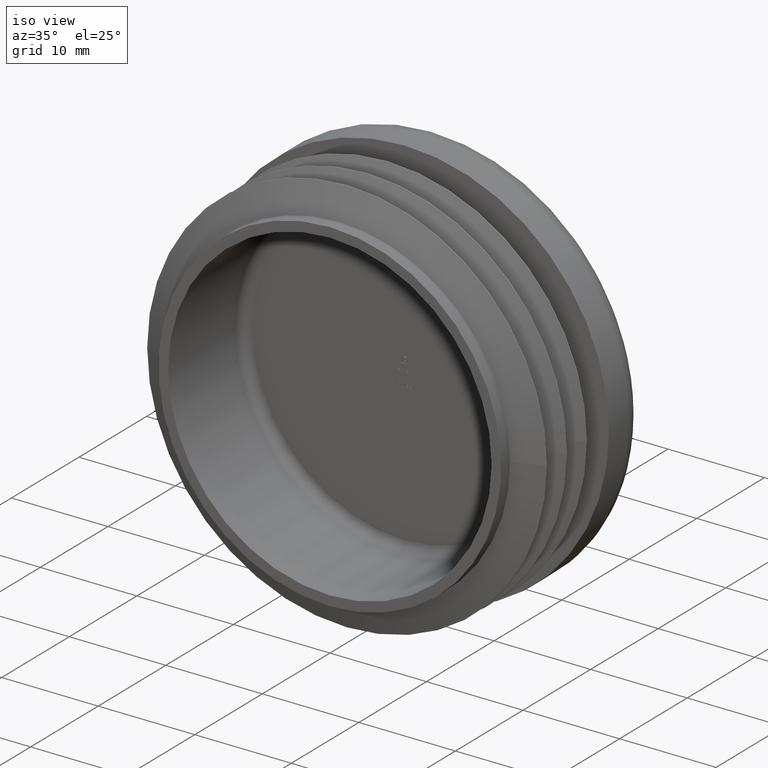
[diagram: clean part render]
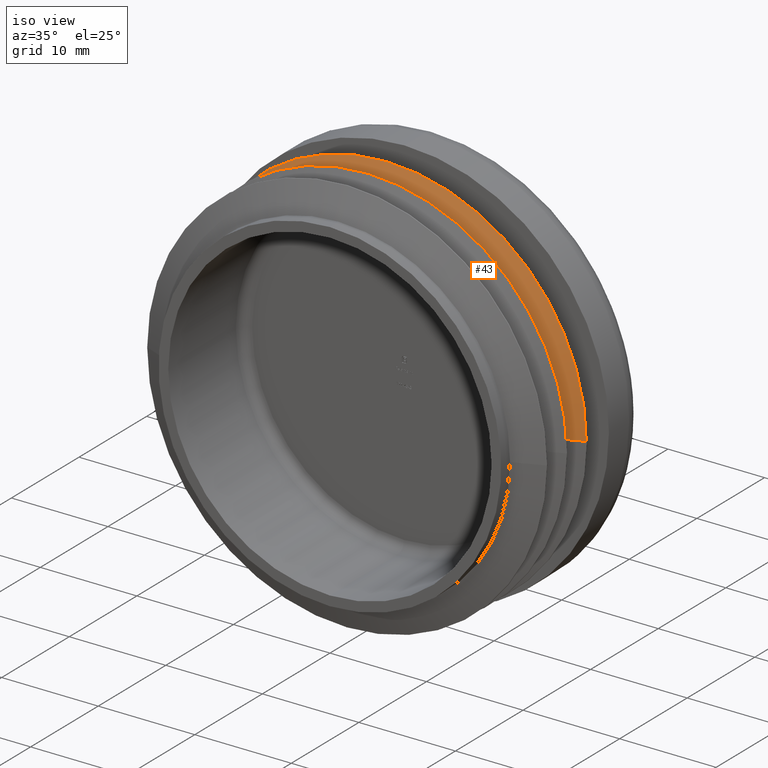
[diagram: same view with one face highlighted and labeled with its STEP entity id]
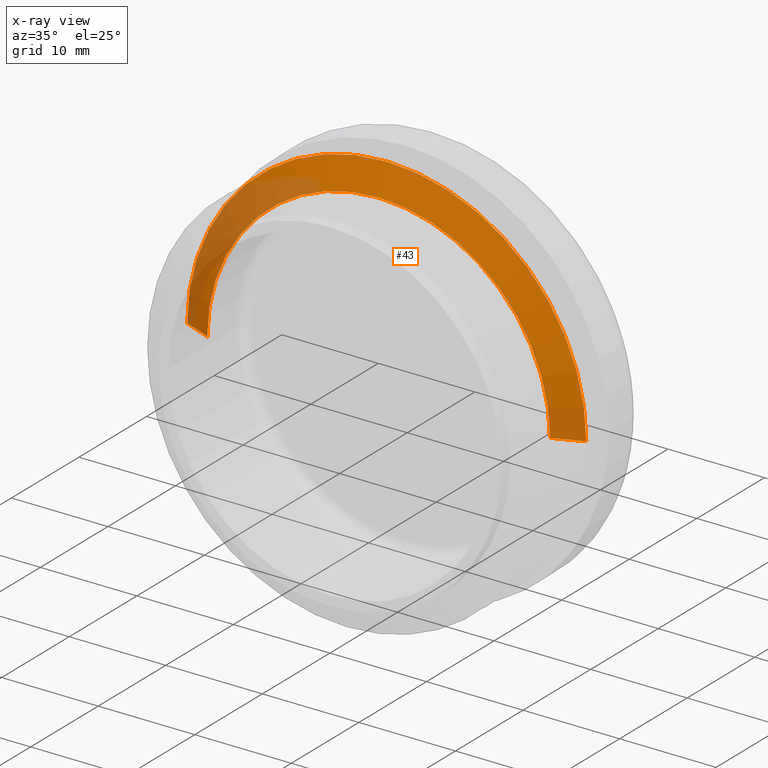
[diagram: x-ray of the same camera — body ghosted, the highlighted face saturated]
A machine part, iso view. The second image highlights one B-rep face of the part: STEP entity #43.
The next image is the same camera in x-ray: the body ghosted, the highlighted face saturated — about 22% of this face is hidden behind the body in this view.
In plain terms, the highlighted conical surface has half-angle 67.59 deg.
Its self-contained STEP definition (entity closure, byte-faithful):
#43 = ADVANCED_FACE ( 'NONE', ( #10192 ), #1349, .T. ) ;
#117 = VERTEX_POINT ( 'NONE', #3184 ) ;
#480 = DIRECTION ( 'NONE',  ( -1.000000000000000000, -1.045720630588836077E-14, 0.000000000000000000 ) ) ;
#1106 = ORIENTED_EDGE ( 'NONE', *, *, #1691, .T. ) ;
#1240 = CARTESIAN_POINT ( 'NONE',  ( 2.173748068484609071E-15, 7.200000000000192024, 17.74999999999999645 ) ) ;
#1349 = CONICAL_SURFACE ( 'NONE', #3201, 17.75000000000007105, 1.179659376938436699 ) ;
#1691 = EDGE_CURVE ( 'NONE', #2196, #2967, #10489, .T. ) ;
#1957 = VERTEX_POINT ( 'NONE', #8608 ) ;
#2052 = DIRECTION ( 'NONE',  ( 1.000000000000000000, 1.049106314699618723E-14, 0.000000000000000000 ) ) ;
#2196 = VERTEX_POINT ( 'NONE', #3012 ) ;
#2201 = EDGE_CURVE ( 'NONE', #2196, #9120, #4946, .T. ) ;
#2301 = DIRECTION ( 'NONE',  ( -1.047444401652940164E-14, 1.000000000000000000, 0.000000000000000000 ) ) ;
#2625 = CARTESIAN_POINT ( 'NONE',  ( -20.66906198721983756, 8.403776189650390194, 0.000000000000000000 ) ) ;
#2705 = AXIS2_PLACEMENT_3D ( 'NONE', #10009, #2301, #480 ) ;
#2791 = EDGE_LOOP ( 'NONE', ( #7774, #12340, #7047, #9863, #1106 ) ) ;
#2967 = VERTEX_POINT ( 'NONE', #1240 ) ;
#3012 = CARTESIAN_POINT ( 'NONE',  ( -17.75000000000007105, 7.200000000000006395, 0.000000000000000000 ) ) ;
#3076 = CIRCLE ( 'NONE', #11592, 20.66906198721974874 ) ;
#3184 = CARTESIAN_POINT ( 'NONE',  ( 20.66906198721965993, 8.403776189650823625, 2.531230060402689730E-15 ) ) ;
#3201 = AXIS2_PLACEMENT_3D ( 'NONE', #3929, #4778, #4822 ) ;
#3929 = CARTESIAN_POINT ( 'NONE',  ( -7.541599691901402812E-14, 7.200000000000223999, 0.000000000000000000 ) ) ;
#4778 = DIRECTION ( 'NONE',  ( -1.047444401652940164E-14, 1.000000000000000000, 0.000000000000000000 ) ) ;
#4822 = DIRECTION ( 'NONE',  ( -1.000000000000000000, -1.045720630588831659E-14, 0.000000000000000000 ) ) ;
#4946 = LINE ( 'NONE', #11837, #9883 ) ;
#5001 = LINE ( 'NONE', #11653, #9797 ) ;
#5327 = AXIS2_PLACEMENT_3D ( 'NONE', #9352, #5535, #5821 ) ;
#5404 = EDGE_CURVE ( 'NONE', #2967, #1957, #5473, .T. ) ;
#5473 = CIRCLE ( 'NONE', #5327, 17.74999999999999645 ) ;
#5535 = DIRECTION ( 'NONE',  ( -1.047444401652940164E-14, 1.000000000000000000, 0.000000000000000000 ) ) ;
#5821 = DIRECTION ( 'NONE',  ( -1.000000000000000000, -1.045720630588836077E-14, 0.000000000000000000 ) ) ;
#6746 = CARTESIAN_POINT ( 'NONE',  ( -8.802488322593806652E-14, 8.403776189650606909, 0.000000000000000000 ) ) ;
#7047 = ORIENTED_EDGE ( 'NONE', *, *, #12302, .T. ) ;
#7774 = ORIENTED_EDGE ( 'NONE', *, *, #5404, .T. ) ;
#7845 = DIRECTION ( 'NONE',  ( 1.047444401652940164E-14, -1.000000000000000000, -0.000000000000000000 ) ) ;
#7876 = DIRECTION ( 'NONE',  ( 0.9244762069923481151, 0.3812397443932635244, 1.132156827781070026E-16 ) ) ;
#8608 = CARTESIAN_POINT ( 'NONE',  ( 17.74999999999991829, 7.200000000000377653, 2.352489064444620883E-15 ) ) ;
#8773 = EDGE_CURVE ( 'NONE', #1957, #117, #5001, .T. ) ;
#9120 = VERTEX_POINT ( 'NONE', #2625 ) ;
#9352 = CARTESIAN_POINT ( 'NONE',  ( -7.541599691901369996E-14, 7.200000000000192024, 0.000000000000000000 ) ) ;
#9797 = VECTOR ( 'NONE', #7876, 1000.000000000000114 ) ;
#9863 = ORIENTED_EDGE ( 'NONE', *, *, #2201, .F. ) ;
#9883 = VECTOR ( 'NONE', #11906, 1000.000000000000000 ) ;
#10009 = CARTESIAN_POINT ( 'NONE',  ( -7.541599691901369996E-14, 7.200000000000192024, 0.000000000000000000 ) ) ;
#10192 = FACE_OUTER_BOUND ( 'NONE', #2791, .T. ) ;
#10489 = CIRCLE ( 'NONE', #2705, 17.74999999999999645 ) ;
#11592 = AXIS2_PLACEMENT_3D ( 'NONE', #6746, #7845, #2052 ) ;
#11653 = CARTESIAN_POINT ( 'NONE',  ( 17.74999999999999645, 7.200000000000409628, 2.173748068486560713E-15 ) ) ;
#11837 = CARTESIAN_POINT ( 'NONE',  ( -17.75000000000014921, 7.200000000000038369, 0.000000000000000000 ) ) ;
#11906 = DIRECTION ( 'NONE',  ( -0.9244762069923562198, 0.3812397443932442065, 0.000000000000000000 ) ) ;
#12302 = EDGE_CURVE ( 'NONE', #117, #9120, #3076, .T. ) ;
#12340 = ORIENTED_EDGE ( 'NONE', *, *, #8773, .T. ) ;